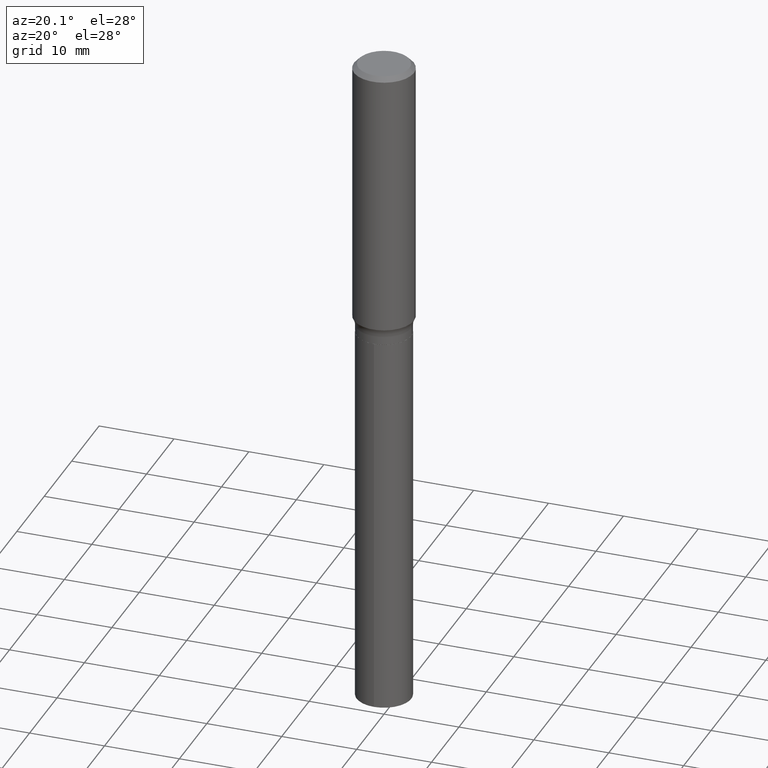
[diagram: clean part render]
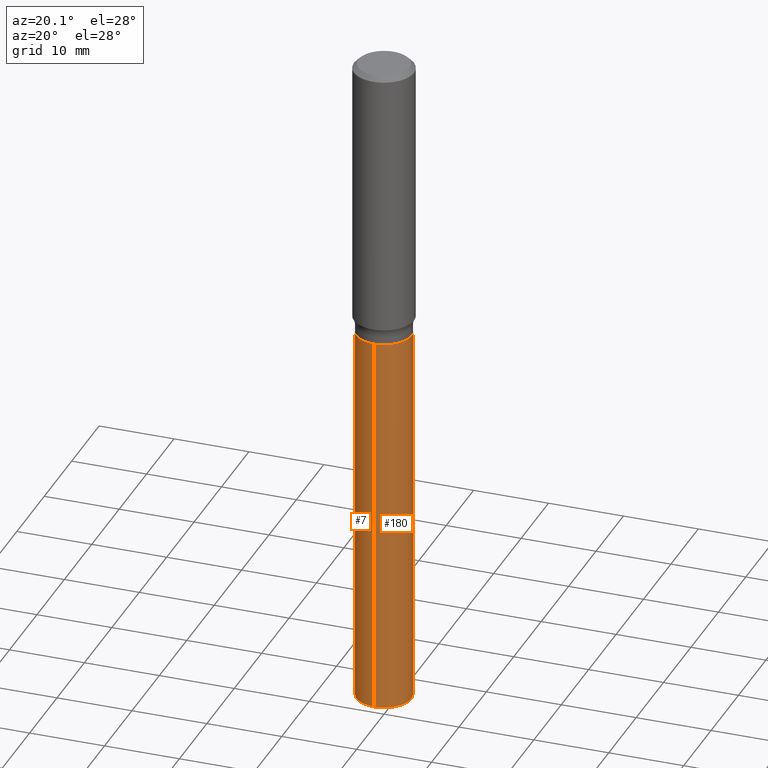
[diagram: same view with one multi-face feature highlighted, each face labeled with its STEP entity id]
A machine part, auxiliary view. The highlighted faces form ONE feature: a constant-radius fillet chain: 2 tangent blend faces with common blend radius 3.65 mm. The faces share edges in the B-rep.
Their STEP definitions:
[1] entity #7 (Cylinder):
#7 = ADVANCED_FACE ( 'NONE', ( #388 ), #238, .T. ) ;
#42 = EDGE_CURVE ( 'NONE', #148, #125, #142, .T. ) ;
#44 = CARTESIAN_POINT ( 'NONE',  ( 3.659399521575438742E-29, -5.224652675444883351E-15, -1.496400000000000174 ) ) ;
#49 = DIRECTION ( 'NONE',  ( -2.445445601509706497E-29, 3.491514569259089389E-15, 1.000000000000000000 ) ) ;
#90 = DIRECTION ( 'NONE',  ( -2.445445601509706497E-29, 3.491514569259089389E-15, 1.000000000000000000 ) ) ;
#93 = ORIENTED_EDGE ( 'NONE', *, *, #42, .F. ) ;
#102 = VECTOR ( 'NONE', #287, 39.37007874015748143 ) ;
#106 = AXIS2_PLACEMENT_3D ( 'NONE', #166, #357, #319 ) ;
#110 = ORIENTED_EDGE ( 'NONE', *, *, #327, .T. ) ;
#112 = EDGE_CURVE ( 'NONE', #296, #148, #475, .T. ) ;
#125 = VERTEX_POINT ( 'NONE', #356 ) ;
#131 = DIRECTION ( 'NONE',  ( -6.982962677686265922E-15, -1.000000000000000000, 3.802154479699741047E-15 ) ) ;
#142 = CIRCLE ( 'NONE', #239, 0.1436999999999999944 ) ;
#143 = AXIS2_PLACEMENT_3D ( 'NONE', #283, #90, #131 ) ;
#148 = VERTEX_POINT ( 'NONE', #245 ) ;
#166 = CARTESIAN_POINT ( 'NONE',  ( 3.659399521575438742E-29, -5.224652675444883351E-15, -1.496400000000000174 ) ) ;
#188 = VECTOR ( 'NONE', #208, 39.37007874015748143 ) ;
#198 = DIRECTION ( 'NONE',  ( -6.982962677686265922E-15, -1.000000000000000000, 3.802154479699740259E-15 ) ) ;
#208 = DIRECTION ( 'NONE',  ( -2.445445601509706497E-29, 3.491514569259089389E-15, 1.000000000000000000 ) ) ;
#212 = CARTESIAN_POINT ( 'NONE',  ( -1.003451736783479660E-15, -0.1437000000000052125, -1.496399999999999730 ) ) ;
#224 = ORIENTED_EDGE ( 'NONE', *, *, #112, .F. ) ;
#227 = ORIENTED_EDGE ( 'NONE', *, *, #410, .T. ) ;
#232 = CARTESIAN_POINT ( 'NONE',  ( 1.021049911287349913E-15, 0.1436999999999876709, -3.524941431347488496 ) ) ;
#238 = CYLINDRICAL_SURFACE ( 'NONE', #106, 0.1436999999999999944 ) ;
#239 = AXIS2_PLACEMENT_3D ( 'NONE', #44, #49, #198 ) ;
#245 = CARTESIAN_POINT ( 'NONE',  ( 1.021049911287350505E-15, 0.1436999999999947486, -1.496400000000000841 ) ) ;
#283 = CARTESIAN_POINT ( 'NONE',  ( 8.620087242344358148E-29, -1.230733463734032578E-14, -3.524941431347488052 ) ) ;
#287 = DIRECTION ( 'NONE',  ( -2.445445601509706497E-29, 3.491514569259089389E-15, 1.000000000000000000 ) ) ;
#296 = VERTEX_POINT ( 'NONE', #232 ) ;
#319 = DIRECTION ( 'NONE',  ( -6.982962677686265922E-15, -1.000000000000000000, 3.802154479699740259E-15 ) ) ;
#327 = EDGE_CURVE ( 'NONE', #421, #125, #460, .T. ) ;
#354 = CARTESIAN_POINT ( 'NONE',  ( 1.021049911287300412E-15, 0.1436999999999947764, -1.496400000000000841 ) ) ;
#356 = CARTESIAN_POINT ( 'NONE',  ( -1.003451736783479660E-15, -0.1437000000000052125, -1.496399999999999730 ) ) ;
#357 = DIRECTION ( 'NONE',  ( -2.445445601509706497E-29, 3.491514569259089389E-15, 1.000000000000000000 ) ) ;
#388 = FACE_OUTER_BOUND ( 'NONE', #430, .T. ) ;
#401 = CARTESIAN_POINT ( 'NONE',  ( -1.003451736783430159E-15, -0.1437000000000122901, -3.524941431347487608 ) ) ;
#410 = EDGE_CURVE ( 'NONE', #296, #421, #492, .T. ) ;
#421 = VERTEX_POINT ( 'NONE', #401 ) ;
#430 = EDGE_LOOP ( 'NONE', ( #224, #227, #110, #93 ) ) ;
#460 = LINE ( 'NONE', #212, #188 ) ;
#475 = LINE ( 'NONE', #354, #102 ) ;
#492 = CIRCLE ( 'NONE', #143, 0.1436999999999999666 ) ;
[2] entity #180 (Cylinder):
#28 = FACE_OUTER_BOUND ( 'NONE', #264, .T. ) ;
#43 = ORIENTED_EDGE ( 'NONE', *, *, #327, .F. ) ;
#45 = DIRECTION ( 'NONE',  ( -2.445445601509706497E-29, 3.491514569259089389E-15, 1.000000000000000000 ) ) ;
#102 = VECTOR ( 'NONE', #287, 39.37007874015748143 ) ;
#105 = EDGE_CURVE ( 'NONE', #125, #148, #486, .T. ) ;
#112 = EDGE_CURVE ( 'NONE', #296, #148, #475, .T. ) ;
#123 = AXIS2_PLACEMENT_3D ( 'NONE', #397, #201, #470 ) ;
#125 = VERTEX_POINT ( 'NONE', #356 ) ;
#135 = DIRECTION ( 'NONE',  ( -6.982962677686265922E-15, -1.000000000000000000, 3.802154479699740259E-15 ) ) ;
#148 = VERTEX_POINT ( 'NONE', #245 ) ;
#170 = DIRECTION ( 'NONE',  ( -6.982962677686265922E-15, -1.000000000000000000, 3.802154479699741047E-15 ) ) ;
#175 = CYLINDRICAL_SURFACE ( 'NONE', #178, 0.1436999999999999944 ) ;
#178 = AXIS2_PLACEMENT_3D ( 'NONE', #482, #436, #135 ) ;
#180 = ADVANCED_FACE ( 'NONE', ( #28 ), #175, .T. ) ;
#188 = VECTOR ( 'NONE', #208, 39.37007874015748143 ) ;
#201 = DIRECTION ( 'NONE',  ( -2.445445601509706497E-29, 3.491514569259089389E-15, 1.000000000000000000 ) ) ;
#208 = DIRECTION ( 'NONE',  ( -2.445445601509706497E-29, 3.491514569259089389E-15, 1.000000000000000000 ) ) ;
#212 = CARTESIAN_POINT ( 'NONE',  ( -1.003451736783479660E-15, -0.1437000000000052125, -1.496399999999999730 ) ) ;
#232 = CARTESIAN_POINT ( 'NONE',  ( 1.021049911287349913E-15, 0.1436999999999876709, -3.524941431347488496 ) ) ;
#245 = CARTESIAN_POINT ( 'NONE',  ( 1.021049911287350505E-15, 0.1436999999999947486, -1.496400000000000841 ) ) ;
#264 = EDGE_LOOP ( 'NONE', ( #316, #308, #371, #43 ) ) ;
#286 = CIRCLE ( 'NONE', #300, 0.1436999999999999666 ) ;
#287 = DIRECTION ( 'NONE',  ( -2.445445601509706497E-29, 3.491514569259089389E-15, 1.000000000000000000 ) ) ;
#296 = VERTEX_POINT ( 'NONE', #232 ) ;
#300 = AXIS2_PLACEMENT_3D ( 'NONE', #320, #45, #170 ) ;
#308 = ORIENTED_EDGE ( 'NONE', *, *, #112, .T. ) ;
#316 = ORIENTED_EDGE ( 'NONE', *, *, #341, .T. ) ;
#320 = CARTESIAN_POINT ( 'NONE',  ( 8.620087242344358148E-29, -1.230733463734032578E-14, -3.524941431347488052 ) ) ;
#327 = EDGE_CURVE ( 'NONE', #421, #125, #460, .T. ) ;
#341 = EDGE_CURVE ( 'NONE', #421, #296, #286, .T. ) ;
#354 = CARTESIAN_POINT ( 'NONE',  ( 1.021049911287300412E-15, 0.1436999999999947764, -1.496400000000000841 ) ) ;
#356 = CARTESIAN_POINT ( 'NONE',  ( -1.003451736783479660E-15, -0.1437000000000052125, -1.496399999999999730 ) ) ;
#371 = ORIENTED_EDGE ( 'NONE', *, *, #105, .F. ) ;
#397 = CARTESIAN_POINT ( 'NONE',  ( 3.659399521575438742E-29, -5.224652675444883351E-15, -1.496400000000000174 ) ) ;
#401 = CARTESIAN_POINT ( 'NONE',  ( -1.003451736783430159E-15, -0.1437000000000122901, -3.524941431347487608 ) ) ;
#421 = VERTEX_POINT ( 'NONE', #401 ) ;
#436 = DIRECTION ( 'NONE',  ( -2.445445601509706497E-29, 3.491514569259089389E-15, 1.000000000000000000 ) ) ;
#460 = LINE ( 'NONE', #212, #188 ) ;
#470 = DIRECTION ( 'NONE',  ( -6.982962677686265922E-15, -1.000000000000000000, 3.802154479699740259E-15 ) ) ;
#475 = LINE ( 'NONE', #354, #102 ) ;
#482 = CARTESIAN_POINT ( 'NONE',  ( 3.659399521575438742E-29, -5.224652675444883351E-15, -1.496400000000000174 ) ) ;
#486 = CIRCLE ( 'NONE', #123, 0.1436999999999999944 ) ;